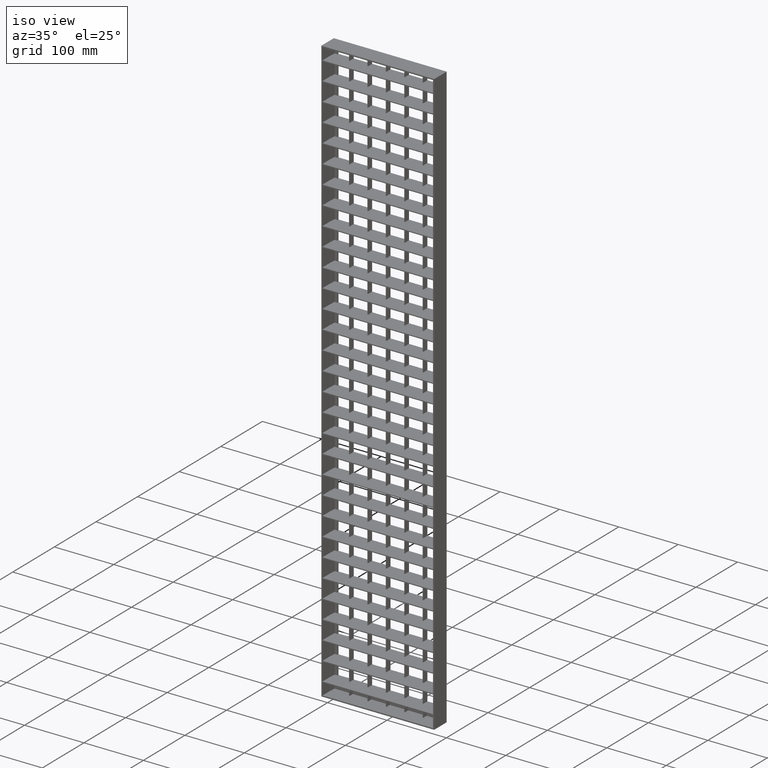
[diagram: clean part render]
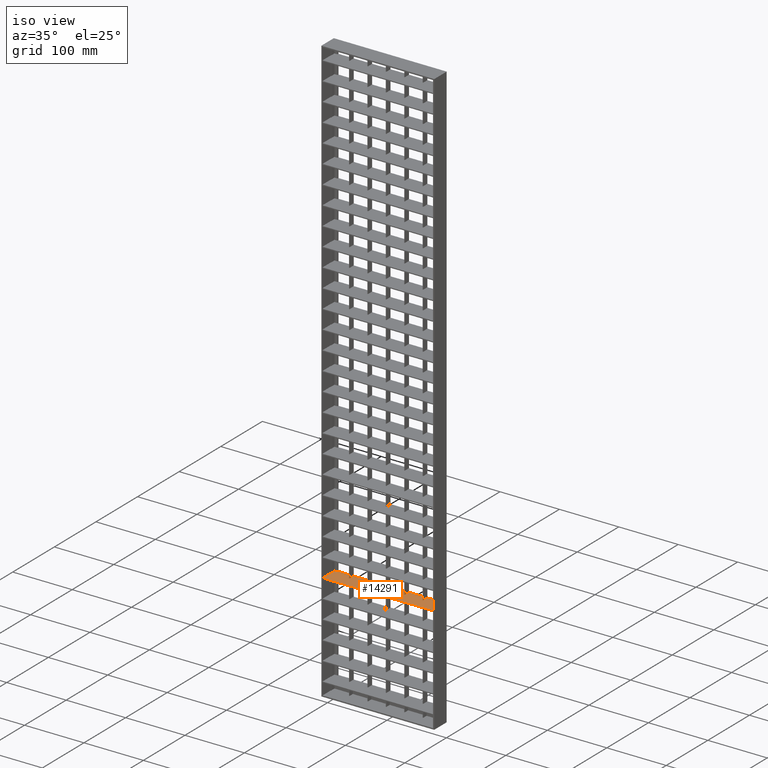
[diagram: same view with one face highlighted and labeled with its STEP entity id]
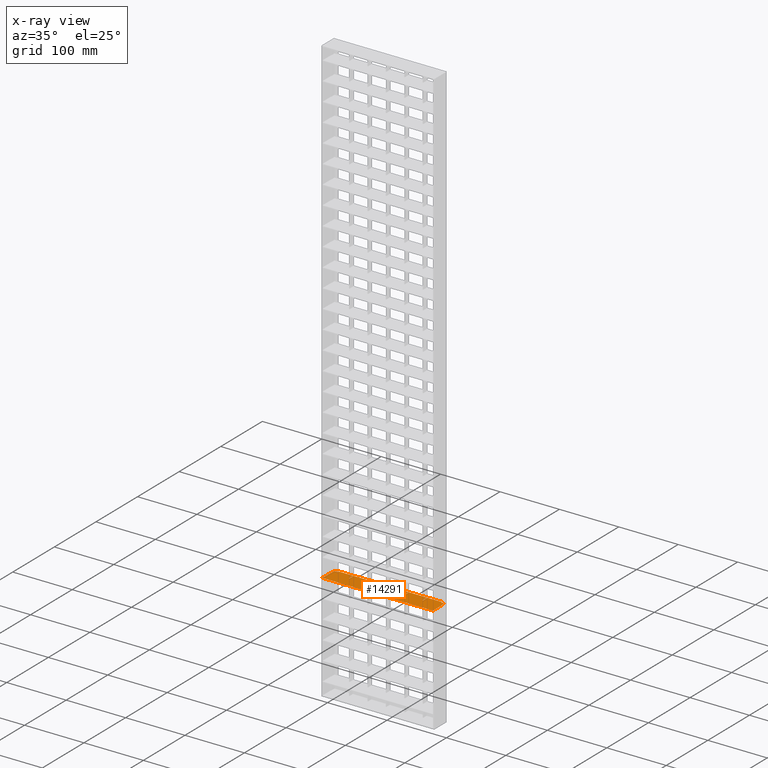
[diagram: x-ray of the same camera — body ghosted, the highlighted face saturated]
A machine part, iso view. The second image highlights one B-rep face of the part: STEP entity #14291.
The next image is the same camera in x-ray: the body ghosted, the highlighted face saturated — about 0% of this face is hidden behind the body in this view.
In plain terms, the highlighted planar face has unit normal (0, 0, -1).
Its self-contained STEP definition (entity closure, byte-faithful):
#121 = VERTEX_POINT ( 'NONE', #30431 ) ;
#152 = LINE ( 'NONE', #3005, #16936 ) ;
#233 = DIRECTION ( 'NONE',  ( 0.0000000000000000000, 1.000000000000000000, 0.0000000000000000000 ) ) ;
#335 = LINE ( 'NONE', #33437, #8083 ) ;
#429 = CARTESIAN_POINT ( 'NONE',  ( 7.999999999999996400, 13.00000000000000400, -809.2499999999998900 ) ) ;
#489 = VERTEX_POINT ( 'NONE', #33926 ) ;
#594 = CARTESIAN_POINT ( 'NONE',  ( 126.5000000000000900, 15.00000000000003000, -809.2499999999998900 ) ) ;
#864 = VECTOR ( 'NONE', #18227, 1000.000000000000000 ) ;
#865 = CARTESIAN_POINT ( 'NONE',  ( 156.5000000000000000, 5.000000000000002700, -809.2500000000000000 ) ) ;
#1039 = EDGE_LOOP ( 'NONE', ( #22065, #3009, #6017, #3927, #33721, #31904, #29177, #8065, #26848, #13251, #3628, #17972, #22088, #26462, #2960, #19140, #23495, #7383, #2606, #22432, #7103, #14254, #22516, #4091, #19755, #8349, #27168, #24162, #7052, #33216, #25193, #20421 ) ) ;
#1107 = VECTOR ( 'NONE', #14888, 1000.000000000000000 ) ;
#1216 = LINE ( 'NONE', #8182, #19258 ) ;
#1321 = EDGE_CURVE ( 'NONE', #2040, #8385, #29233, .T. ) ;
#1541 = FACE_OUTER_BOUND ( 'NONE', #1039, .T. ) ;
#1543 = EDGE_CURVE ( 'NONE', #9865, #33087, #30030, .T. ) ;
#1797 = CARTESIAN_POINT ( 'NONE',  ( 218.0374765917511300, 15.00000000000005900, -809.2499999999998900 ) ) ;
#1808 = CARTESIAN_POINT ( 'NONE',  ( 218.0374765917511600, 4.999999999999997300, -809.2499999999998900 ) ) ;
#2040 = VERTEX_POINT ( 'NONE', #32656 ) ;
#2329 = EDGE_CURVE ( 'NONE', #15139, #32320, #8623, .T. ) ;
#2467 = CARTESIAN_POINT ( 'NONE',  ( 33.50000000000002800, 15.00000000000000200, -809.2499999999998900 ) ) ;
#2606 = ORIENTED_EDGE ( 'NONE', *, *, #6467, .T. ) ;
#2960 = ORIENTED_EDGE ( 'NONE', *, *, #30284, .T. ) ;
#3005 = CARTESIAN_POINT ( 'NONE',  ( 32.50000000000000000, -14.99999999999994000, -809.2499999999998900 ) ) ;
#3009 = ORIENTED_EDGE ( 'NONE', *, *, #6863, .F. ) ;
#3203 = CARTESIAN_POINT ( 'NONE',  ( 218.0374765917511600, 4.999999999999997300, -809.2499999999998900 ) ) ;
#3628 = ORIENTED_EDGE ( 'NONE', *, *, #25241, .F. ) ;
#3697 = VERTEX_POINT ( 'NONE', #13803 ) ;
#3739 = VECTOR ( 'NONE', #7532, 1000.000000000000000 ) ;
#3883 = CARTESIAN_POINT ( 'NONE',  ( 33.50000000000000000, 5.000000000000004400, -809.2499999999998900 ) ) ;
#3927 = ORIENTED_EDGE ( 'NONE', *, *, #1321, .F. ) ;
#4091 = ORIENTED_EDGE ( 'NONE', *, *, #28793, .T. ) ;
#4184 = VECTOR ( 'NONE', #233, 1000.000000000000000 ) ;
#4424 = DIRECTION ( 'NONE',  ( -8.673617379884038400E-016, -1.000000000000000000, 0.0000000000000000000 ) ) ;
#4733 = CARTESIAN_POINT ( 'NONE',  ( 218.0374765917511300, 15.00000000000005900, -809.2499999999998900 ) ) ;
#4794 = DIRECTION ( 'NONE',  ( 0.0000000000000000000, -1.000000000000000000, 0.0000000000000000000 ) ) ;
#5024 = DIRECTION ( 'NONE',  ( 0.0000000000000000000, -1.000000000000000000, 0.0000000000000000000 ) ) ;
#5146 = DIRECTION ( 'NONE',  ( 0.0000000000000000000, -1.000000000000000000, 0.0000000000000000000 ) ) ;
#5169 = CARTESIAN_POINT ( 'NONE',  ( 95.50000000000000000, 15.00000000000002000, -809.2499999999998900 ) ) ;
#5179 = VECTOR ( 'NONE', #30621, 1000.000000000000000 ) ;
#5316 = VECTOR ( 'NONE', #6629, 1000.000000000000000 ) ;
#5361 = CARTESIAN_POINT ( 'NONE',  ( 2.499999999999974200, -14.99999999999994000, -809.2499999999998900 ) ) ;
#5384 = EDGE_CURVE ( 'NONE', #32894, #25144, #11204, .T. ) ;
#5435 = LINE ( 'NONE', #28676, #23080 ) ;
#5501 = VECTOR ( 'NONE', #27661, 1000.000000000000000 ) ;
#5583 = EDGE_CURVE ( 'NONE', #8099, #10282, #23514, .T. ) ;
#5636 = DIRECTION ( 'NONE',  ( 0.0000000000000000000, 1.000000000000000000, 0.0000000000000000000 ) ) ;
#5680 = LINE ( 'NONE', #7631, #32744 ) ;
#5887 = VERTEX_POINT ( 'NONE', #23429 ) ;
#5895 = VECTOR ( 'NONE', #17613, 1000.000000000000000 ) ;
#5913 = EDGE_CURVE ( 'NONE', #31175, #12881, #32059, .T. ) ;
#5929 = EDGE_CURVE ( 'NONE', #27327, #121, #5435, .T. ) ;
#6017 = ORIENTED_EDGE ( 'NONE', *, *, #25056, .F. ) ;
#6093 = DIRECTION ( 'NONE',  ( -1.000000000000000000, 0.0000000000000000000, 0.0000000000000000000 ) ) ;
#6291 = VERTEX_POINT ( 'NONE', #9495 ) ;
#6394 = LINE ( 'NONE', #4733, #5179 ) ;
#6467 = EDGE_CURVE ( 'NONE', #16551, #8099, #9852, .T. ) ;
#6526 = CARTESIAN_POINT ( 'NONE',  ( 63.49999999999997200, 15.00000000000000200, -809.2500000000000000 ) ) ;
#6600 = DIRECTION ( 'NONE',  ( 1.000000000000000000, 0.0000000000000000000, 0.0000000000000000000 ) ) ;
#6629 = DIRECTION ( 'NONE',  ( 0.0000000000000000000, -1.000000000000000000, 0.0000000000000000000 ) ) ;
#6692 = CARTESIAN_POINT ( 'NONE',  ( 218.0374765917511300, 15.00000000000005900, -809.2499999999998900 ) ) ;
#6863 = EDGE_CURVE ( 'NONE', #13273, #19034, #14743, .T. ) ;
#7052 = ORIENTED_EDGE ( 'NONE', *, *, #20491, .T. ) ;
#7075 = VECTOR ( 'NONE', #13968, 1000.000000000000000 ) ;
#7103 = ORIENTED_EDGE ( 'NONE', *, *, #28845, .T. ) ;
#7383 = ORIENTED_EDGE ( 'NONE', *, *, #30992, .T. ) ;
#7421 = CARTESIAN_POINT ( 'NONE',  ( 188.0000000000000000, 5.000000000000004400, -809.2499999999998900 ) ) ;
#7496 = VECTOR ( 'NONE', #21190, 1000.000000000000000 ) ;
#7532 = DIRECTION ( 'NONE',  ( -1.000000000000000000, 0.0000000000000000000, 0.0000000000000000000 ) ) ;
#7579 = EDGE_CURVE ( 'NONE', #6291, #19726, #18888, .T. ) ;
#7631 = CARTESIAN_POINT ( 'NONE',  ( 64.50000000000000000, -14.99999999999994000, -809.2499999999998900 ) ) ;
#7700 = DIRECTION ( 'NONE',  ( 0.0000000000000000000, 1.000000000000000000, 0.0000000000000000000 ) ) ;
#7718 = DIRECTION ( 'NONE',  ( 0.0000000000000000000, -1.000000000000000000, 0.0000000000000000000 ) ) ;
#8065 = ORIENTED_EDGE ( 'NONE', *, *, #30397, .F. ) ;
#8083 = VECTOR ( 'NONE', #33337, 1000.000000000000000 ) ;
#8099 = VERTEX_POINT ( 'NONE', #28561 ) ;
#8182 = CARTESIAN_POINT ( 'NONE',  ( 218.0374765917511600, 4.999999999999997300, -809.2499999999998900 ) ) ;
#8283 = DIRECTION ( 'NONE',  ( -8.673617379884037400E-016, 1.000000000000000000, 0.0000000000000000000 ) ) ;
#8349 = ORIENTED_EDGE ( 'NONE', *, *, #7579, .F. ) ;
#8362 = CARTESIAN_POINT ( 'NONE',  ( 157.5000000000000300, 15.00000000000003900, -809.2499999999998900 ) ) ;
#8385 = VERTEX_POINT ( 'NONE', #33518 ) ;
#8418 = DIRECTION ( 'NONE',  ( 1.000000000000000000, 0.0000000000000000000, 0.0000000000000000000 ) ) ;
#8506 = CARTESIAN_POINT ( 'NONE',  ( 188.0000000000000000, -15.00000000000000700, -809.2499999999998900 ) ) ;
#8623 = LINE ( 'NONE', #5361, #16832 ) ;
#8673 = LINE ( 'NONE', #30679, #4184 ) ;
#9053 = CARTESIAN_POINT ( 'NONE',  ( 187.5000000000000300, 5.000000000000002700, -809.2500000000000000 ) ) ;
#9268 = VERTEX_POINT ( 'NONE', #865 ) ;
#9298 = EDGE_CURVE ( 'NONE', #20619, #3697, #23244, .T. ) ;
#9495 = CARTESIAN_POINT ( 'NONE',  ( 7.999999999999996400, 13.00000000000000400, -809.2499999999998900 ) ) ;
#9736 = DIRECTION ( 'NONE',  ( 0.0000000000000000000, 1.000000000000000000, 0.0000000000000000000 ) ) ;
#9755 = EDGE_CURVE ( 'NONE', #5887, #18863, #10475, .T. ) ;
#9852 = LINE ( 'NONE', #31024, #3739 ) ;
#9865 = VERTEX_POINT ( 'NONE', #5169 ) ;
#10223 = LINE ( 'NONE', #10620, #864 ) ;
#10282 = VERTEX_POINT ( 'NONE', #6526 ) ;
#10334 = EDGE_CURVE ( 'NONE', #29309, #30617, #15746, .T. ) ;
#10475 = LINE ( 'NONE', #12241, #1107 ) ;
#10506 = VECTOR ( 'NONE', #6093, 1000.000000000000000 ) ;
#10620 = CARTESIAN_POINT ( 'NONE',  ( 218.0374765917511600, 4.999999999999997300, -809.2499999999998900 ) ) ;
#10910 = CARTESIAN_POINT ( 'NONE',  ( 63.50000000000000000, -14.99999999999994000, -809.2499999999998900 ) ) ;
#10973 = VECTOR ( 'NONE', #16971, 1000.000000000000000 ) ;
#11204 = LINE ( 'NONE', #28024, #5895 ) ;
#11449 = LINE ( 'NONE', #23735, #26672 ) ;
#11569 = DIRECTION ( 'NONE',  ( -1.000000000000000000, 0.0000000000000000000, -0.0000000000000000000 ) ) ;
#11570 = EDGE_CURVE ( 'NONE', #27037, #31175, #8673, .T. ) ;
#11792 = LINE ( 'NONE', #33114, #10973 ) ;
#11863 = VECTOR ( 'NONE', #8283, 1000.000000000000000 ) ;
#12241 = CARTESIAN_POINT ( 'NONE',  ( 157.5000000000000000, -14.99999999999994000, -809.2499999999998900 ) ) ;
#12250 = LINE ( 'NONE', #17289, #5316 ) ;
#12438 = LINE ( 'NONE', #1797, #5501 ) ;
#12443 = CARTESIAN_POINT ( 'NONE',  ( 64.50000000000000000, 5.000000000000004400, -809.2499999999998900 ) ) ;
#12495 = CARTESIAN_POINT ( 'NONE',  ( 2.000000000000004900, 13.00000000000000400, -809.2499999999998900 ) ) ;
#12616 = CARTESIAN_POINT ( 'NONE',  ( 2.499999999999974200, 13.00000000000000200, -809.2499999999998900 ) ) ;
#12848 = CARTESIAN_POINT ( 'NONE',  ( 188.0000000000000000, -14.99999999999994000, -809.2499999999998900 ) ) ;
#12881 = VERTEX_POINT ( 'NONE', #29447 ) ;
#13150 = DIRECTION ( 'NONE',  ( 0.0000000000000000000, -1.000000000000000000, 0.0000000000000000000 ) ) ;
#13251 = ORIENTED_EDGE ( 'NONE', *, *, #10334, .F. ) ;
#13273 = VERTEX_POINT ( 'NONE', #15065 ) ;
#13408 = CARTESIAN_POINT ( 'NONE',  ( 218.0374765917511300, 15.00000000000005900, -809.2499999999998900 ) ) ;
#13543 = VECTOR ( 'NONE', #7700, 1000.000000000000000 ) ;
#13803 = CARTESIAN_POINT ( 'NONE',  ( 32.49999999999997200, 4.999999999999997300, -809.2499999999998900 ) ) ;
#13884 = DIRECTION ( 'NONE',  ( 0.0000000000000000000, 1.000000000000000000, 0.0000000000000000000 ) ) ;
#13968 = DIRECTION ( 'NONE',  ( -1.000000000000000000, -3.061616997868382600E-016, 0.0000000000000000000 ) ) ;
#14254 = ORIENTED_EDGE ( 'NONE', *, *, #19511, .T. ) ;
#14291 = ADVANCED_FACE ( 'NONE', ( #1541 ), #22484, .F. ) ;
#14355 = VERTEX_POINT ( 'NONE', #24908 ) ;
#14510 = DIRECTION ( 'NONE',  ( 0.0000000000000000000, 1.000000000000000000, 0.0000000000000000000 ) ) ;
#14605 = VERTEX_POINT ( 'NONE', #7421 ) ;
#14743 = LINE ( 'NONE', #18220, #29544 ) ;
#14888 = DIRECTION ( 'NONE',  ( 0.0000000000000000000, 1.000000000000000000, 0.0000000000000000000 ) ) ;
#15065 = CARTESIAN_POINT ( 'NONE',  ( 187.5000000000000300, 13.00000000000000400, -809.2499999999998900 ) ) ;
#15139 = VERTEX_POINT ( 'NONE', #12616 ) ;
#15746 = LINE ( 'NONE', #16958, #18229 ) ;
#15856 = LINE ( 'NONE', #3203, #7496 ) ;
#15881 = EDGE_CURVE ( 'NONE', #14355, #19726, #6394, .T. ) ;
#16159 = VECTOR ( 'NONE', #25053, 1000.000000000000000 ) ;
#16551 = VERTEX_POINT ( 'NONE', #12443 ) ;
#16666 = VECTOR ( 'NONE', #22167, 1000.000000000000000 ) ;
#16832 = VECTOR ( 'NONE', #5024, 1000.000000000000000 ) ;
#16870 = CARTESIAN_POINT ( 'NONE',  ( 218.0374765917511600, -14.99999999999994000, -809.2499999999998900 ) ) ;
#16936 = VECTOR ( 'NONE', #5636, 1000.000000000000000 ) ;
#16958 = CARTESIAN_POINT ( 'NONE',  ( 126.5000000000000600, -14.99999999999994000, -809.2499999999998900 ) ) ;
#16971 = DIRECTION ( 'NONE',  ( 1.000000000000000000, 0.0000000000000000000, 0.0000000000000000000 ) ) ;
#17289 = CARTESIAN_POINT ( 'NONE',  ( 33.50000000000000000, -14.99999999999994000, -809.2499999999998900 ) ) ;
#17613 = DIRECTION ( 'NONE',  ( -1.000000000000000000, -3.061616997868382600E-016, 0.0000000000000000000 ) ) ;
#17648 = VECTOR ( 'NONE', #6600, 1000.000000000000000 ) ;
#17972 = ORIENTED_EDGE ( 'NONE', *, *, #5929, .F. ) ;
#18220 = CARTESIAN_POINT ( 'NONE',  ( 187.5000000000000300, -14.99999999999994000, -809.2499999999998900 ) ) ;
#18227 = DIRECTION ( 'NONE',  ( -1.000000000000000000, 0.0000000000000000000, 0.0000000000000000000 ) ) ;
#18229 = VECTOR ( 'NONE', #14510, 1000.000000000000000 ) ;
#18863 = VERTEX_POINT ( 'NONE', #8362 ) ;
#18888 = LINE ( 'NONE', #429, #11863 ) ;
#19034 = VERTEX_POINT ( 'NONE', #9053 ) ;
#19140 = ORIENTED_EDGE ( 'NONE', *, *, #11570, .T. ) ;
#19258 = VECTOR ( 'NONE', #8418, 1000.000000000000000 ) ;
#19511 = EDGE_CURVE ( 'NONE', #25729, #20619, #12250, .T. ) ;
#19726 = VERTEX_POINT ( 'NONE', #23245 ) ;
#19755 = ORIENTED_EDGE ( 'NONE', *, *, #15881, .T. ) ;
#19978 = EDGE_CURVE ( 'NONE', #9268, #5887, #1216, .T. ) ;
#20421 = ORIENTED_EDGE ( 'NONE', *, *, #29709, .T. ) ;
#20491 = EDGE_CURVE ( 'NONE', #32320, #489, #15856, .T. ) ;
#20619 = VERTEX_POINT ( 'NONE', #3883 ) ;
#20896 = DIRECTION ( 'NONE',  ( -1.000000000000000000, -3.061616997868382600E-016, 0.0000000000000000000 ) ) ;
#21189 = VECTOR ( 'NONE', #33277, 1000.000000000000000 ) ;
#21190 = DIRECTION ( 'NONE',  ( -1.000000000000000000, 0.0000000000000000000, 0.0000000000000000000 ) ) ;
#21350 = EDGE_CURVE ( 'NONE', #2040, #18863, #12438, .T. ) ;
#21419 = EDGE_CURVE ( 'NONE', #27327, #9865, #30903, .T. ) ;
#22065 = ORIENTED_EDGE ( 'NONE', *, *, #24161, .F. ) ;
#22088 = ORIENTED_EDGE ( 'NONE', *, *, #21419, .T. ) ;
#22167 = DIRECTION ( 'NONE',  ( 1.000000000000000000, 0.0000000000000000000, 0.0000000000000000000 ) ) ;
#22197 = LINE ( 'NONE', #25257, #31640 ) ;
#22230 = AXIS2_PLACEMENT_3D ( 'NONE', #16870, #24575, #11569 ) ;
#22273 = VECTOR ( 'NONE', #4424, 1000.000000000000000 ) ;
#22282 = CARTESIAN_POINT ( 'NONE',  ( 125.5000000000000900, 15.00000000000003000, -809.2499999999998900 ) ) ;
#22432 = ORIENTED_EDGE ( 'NONE', *, *, #5583, .T. ) ;
#22484 = PLANE ( 'NONE',  #22230 ) ;
#22516 = ORIENTED_EDGE ( 'NONE', *, *, #9298, .T. ) ;
#22581 = CARTESIAN_POINT ( 'NONE',  ( 2.000000000000004900, -15.00000000000000000, -809.2499999999998900 ) ) ;
#22983 = EDGE_CURVE ( 'NONE', #25144, #489, #22197, .T. ) ;
#23080 = VECTOR ( 'NONE', #26060, 1000.000000000000000 ) ;
#23244 = LINE ( 'NONE', #29921, #10506 ) ;
#23245 = CARTESIAN_POINT ( 'NONE',  ( 8.000000000000062200, 14.99999999999999500, -809.2499999999998900 ) ) ;
#23429 = CARTESIAN_POINT ( 'NONE',  ( 157.5000000000000300, 4.999999999999997300, -809.2499999999998900 ) ) ;
#23495 = ORIENTED_EDGE ( 'NONE', *, *, #5913, .T. ) ;
#23514 = LINE ( 'NONE', #10910, #27184 ) ;
#23668 = CARTESIAN_POINT ( 'NONE',  ( 156.5000000000000300, 15.00000000000003900, -809.2499999999998900 ) ) ;
#23735 = CARTESIAN_POINT ( 'NONE',  ( 156.5000000000000000, -14.99999999999994000, -809.2499999999998900 ) ) ;
#23809 = LINE ( 'NONE', #1808, #17648 ) ;
#23897 = VECTOR ( 'NONE', #7718, 1000.000000000000000 ) ;
#24162 = ORIENTED_EDGE ( 'NONE', *, *, #2329, .T. ) ;
#24161 = EDGE_CURVE ( 'NONE', #19034, #14605, #23809, .T. ) ;
#24575 = DIRECTION ( 'NONE',  ( 0.0000000000000000000, 0.0000000000000000000, -1.000000000000000000 ) ) ;
#24583 = CARTESIAN_POINT ( 'NONE',  ( 95.49999999999997200, 5.000000000000004400, -809.2499999999998900 ) ) ;
#24908 = CARTESIAN_POINT ( 'NONE',  ( 32.49999999999997200, 15.00000000000000200, -809.2500000000000000 ) ) ;
#25053 = DIRECTION ( 'NONE',  ( -1.000000000000000000, -3.061616997868382600E-016, 0.0000000000000000000 ) ) ;
#25056 = EDGE_CURVE ( 'NONE', #8385, #13273, #11792, .T. ) ;
#25144 = VERTEX_POINT ( 'NONE', #22581 ) ;
#25193 = ORIENTED_EDGE ( 'NONE', *, *, #5384, .F. ) ;
#25241 = EDGE_CURVE ( 'NONE', #121, #29309, #335, .T. ) ;
#25257 = CARTESIAN_POINT ( 'NONE',  ( 2.000000000000004900, -15.00000000000000000, -809.2499999999998900 ) ) ;
#25655 = EDGE_CURVE ( 'NONE', #31741, #30617, #28972, .T. ) ;
#25705 = EDGE_CURVE ( 'NONE', #15139, #6291, #33478, .T. ) ;
#25729 = VERTEX_POINT ( 'NONE', #2467 ) ;
#26060 = DIRECTION ( 'NONE',  ( 0.0000000000000000000, -1.000000000000000000, 0.0000000000000000000 ) ) ;
#26462 = ORIENTED_EDGE ( 'NONE', *, *, #1543, .T. ) ;
#26470 = CARTESIAN_POINT ( 'NONE',  ( 2.499999999999974200, 5.000000000000004400, -809.2499999999998900 ) ) ;
#26672 = VECTOR ( 'NONE', #13150, 1000.000000000000000 ) ;
#26848 = ORIENTED_EDGE ( 'NONE', *, *, #25655, .T. ) ;
#27037 = VERTEX_POINT ( 'NONE', #33525 ) ;
#27168 = ORIENTED_EDGE ( 'NONE', *, *, #25705, .F. ) ;
#27184 = VECTOR ( 'NONE', #13884, 1000.000000000000000 ) ;
#27290 = CARTESIAN_POINT ( 'NONE',  ( 218.0374765917511300, 15.00000000000005900, -809.2499999999998900 ) ) ;
#27327 = VERTEX_POINT ( 'NONE', #22282 ) ;
#27661 = DIRECTION ( 'NONE',  ( -1.000000000000000000, -3.061616997868382600E-016, 0.0000000000000000000 ) ) ;
#28024 = CARTESIAN_POINT ( 'NONE',  ( 218.0374765917511600, -14.99999999999994000, -809.2499999999998900 ) ) ;
#28561 = CARTESIAN_POINT ( 'NONE',  ( 63.49999999999997200, 4.999999999999997300, -809.2499999999998900 ) ) ;
#28676 = CARTESIAN_POINT ( 'NONE',  ( 125.5000000000000600, -14.99999999999994000, -809.2499999999998900 ) ) ;
#28793 = EDGE_CURVE ( 'NONE', #3697, #14355, #152, .T. ) ;
#28845 = EDGE_CURVE ( 'NONE', #10282, #25729, #32506, .T. ) ;
#28972 = LINE ( 'NONE', #30063, #21189 ) ;
#29098 = CARTESIAN_POINT ( 'NONE',  ( 126.5000000000000600, 4.999999999999997300, -809.2499999999998900 ) ) ;
#29177 = ORIENTED_EDGE ( 'NONE', *, *, #19978, .F. ) ;
#29233 = LINE ( 'NONE', #30433, #22273 ) ;
#29309 = VERTEX_POINT ( 'NONE', #29098 ) ;
#29447 = CARTESIAN_POINT ( 'NONE',  ( 64.50000000000002800, 15.00000000000001200, -809.2499999999998900 ) ) ;
#29544 = VECTOR ( 'NONE', #5146, 1000.000000000000000 ) ;
#29709 = EDGE_CURVE ( 'NONE', #32894, #14605, #31615, .T. ) ;
#29921 = CARTESIAN_POINT ( 'NONE',  ( 218.0374765917511600, 4.999999999999997300, -809.2499999999998900 ) ) ;
#30030 = LINE ( 'NONE', #33960, #23897 ) ;
#30063 = CARTESIAN_POINT ( 'NONE',  ( 218.0374765917511300, 15.00000000000005900, -809.2499999999998900 ) ) ;
#30284 = EDGE_CURVE ( 'NONE', #33087, #27037, #10223, .T. ) ;
#30397 = EDGE_CURVE ( 'NONE', #31741, #9268, #11449, .T. ) ;
#30431 = CARTESIAN_POINT ( 'NONE',  ( 125.5000000000000300, 5.000000000000002700, -809.2500000000000000 ) ) ;
#30433 = CARTESIAN_POINT ( 'NONE',  ( 182.0000000000000000, 12.99999999999991300, -809.2499999999998900 ) ) ;
#30617 = VERTEX_POINT ( 'NONE', #594 ) ;
#30621 = DIRECTION ( 'NONE',  ( -1.000000000000000000, -3.061616997868382600E-016, 0.0000000000000000000 ) ) ;
#30679 = CARTESIAN_POINT ( 'NONE',  ( 94.49999999999997200, -14.99999999999994000, -809.2499999999998900 ) ) ;
#30903 = LINE ( 'NONE', #6692, #16159 ) ;
#30992 = EDGE_CURVE ( 'NONE', #12881, #16551, #5680, .T. ) ;
#31024 = CARTESIAN_POINT ( 'NONE',  ( 218.0374765917511600, 4.999999999999997300, -809.2499999999998900 ) ) ;
#31175 = VERTEX_POINT ( 'NONE', #31911 ) ;
#31615 = LINE ( 'NONE', #12848, #13543 ) ;
#31640 = VECTOR ( 'NONE', #9736, 1000.000000000000000 ) ;
#31741 = VERTEX_POINT ( 'NONE', #23668 ) ;
#31904 = ORIENTED_EDGE ( 'NONE', *, *, #9755, .F. ) ;
#31911 = CARTESIAN_POINT ( 'NONE',  ( 94.49999999999997200, 15.00000000000000200, -809.2500000000000000 ) ) ;
#32059 = LINE ( 'NONE', #13408, #32896 ) ;
#32320 = VERTEX_POINT ( 'NONE', #26470 ) ;
#32506 = LINE ( 'NONE', #27290, #7075 ) ;
#32656 = CARTESIAN_POINT ( 'NONE',  ( 181.9999999999999400, 15.00000000000000400, -809.2499999999998900 ) ) ;
#32744 = VECTOR ( 'NONE', #4794, 1000.000000000000000 ) ;
#32894 = VERTEX_POINT ( 'NONE', #8506 ) ;
#32896 = VECTOR ( 'NONE', #20896, 1000.000000000000000 ) ;
#33087 = VERTEX_POINT ( 'NONE', #24583 ) ;
#33114 = CARTESIAN_POINT ( 'NONE',  ( 94.99999999999994300, 13.00000000000000400, -809.2499999999998900 ) ) ;
#33216 = ORIENTED_EDGE ( 'NONE', *, *, #22983, .F. ) ;
#33277 = DIRECTION ( 'NONE',  ( -1.000000000000000000, -3.061616997868382600E-016, 0.0000000000000000000 ) ) ;
#33337 = DIRECTION ( 'NONE',  ( 1.000000000000000000, 0.0000000000000000000, 0.0000000000000000000 ) ) ;
#33437 = CARTESIAN_POINT ( 'NONE',  ( 218.0374765917511600, 4.999999999999997300, -809.2499999999998900 ) ) ;
#33478 = LINE ( 'NONE', #12495, #16666 ) ;
#33518 = CARTESIAN_POINT ( 'NONE',  ( 182.0000000000000000, 13.00000000000000400, -809.2499999999998900 ) ) ;
#33525 = CARTESIAN_POINT ( 'NONE',  ( 94.49999999999997200, 4.999999999999997300, -809.2499999999998900 ) ) ;
#33721 = ORIENTED_EDGE ( 'NONE', *, *, #21350, .T. ) ;
#33926 = CARTESIAN_POINT ( 'NONE',  ( 2.000000000000001800, 4.999999999999997300, -809.2499999999998900 ) ) ;
#33960 = CARTESIAN_POINT ( 'NONE',  ( 95.49999999999997200, -14.99999999999994000, -809.2499999999998900 ) ) ;